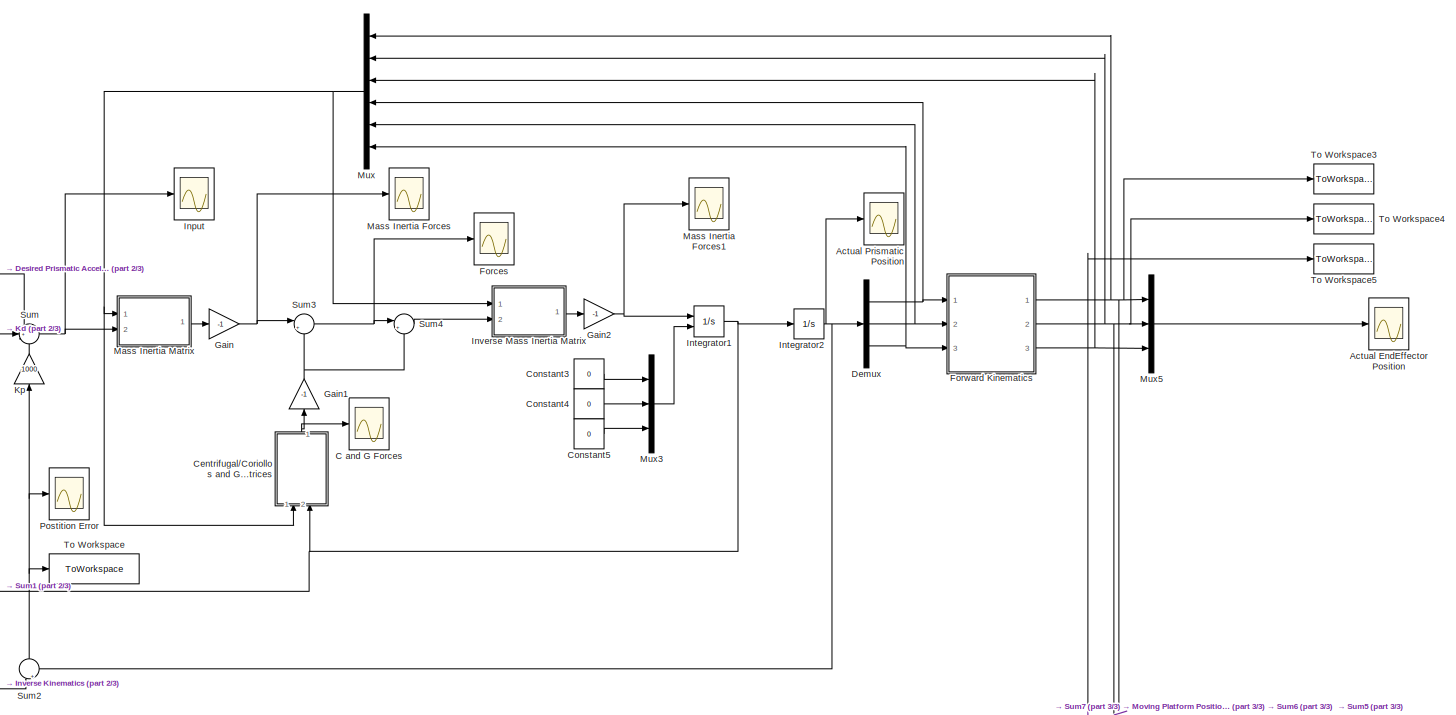
[diagram: root canvas - part 1/3, top center region]
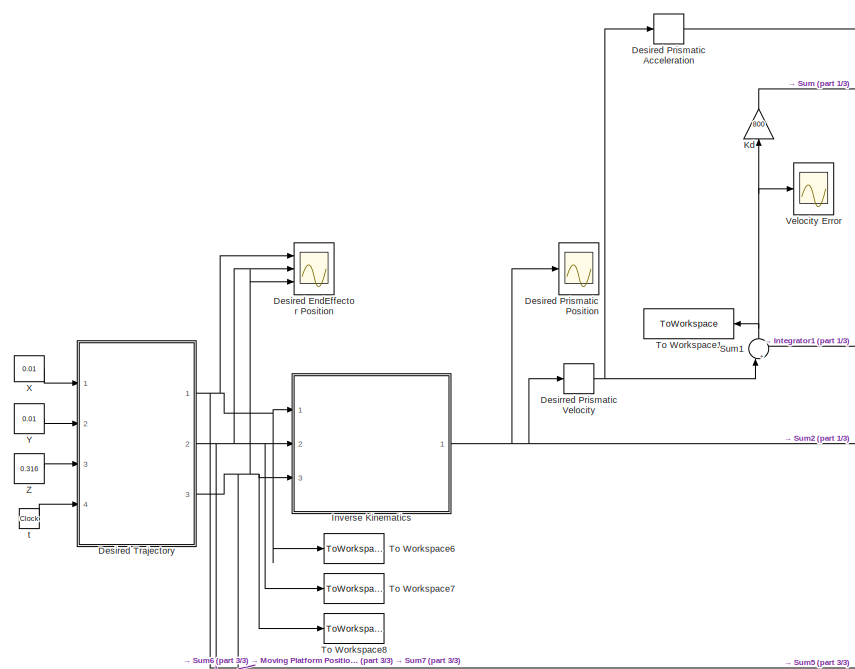
[diagram: root canvas - part 2/3, middle left region]
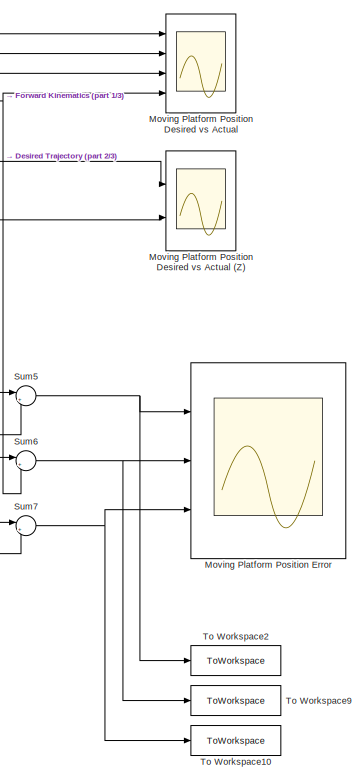
[diagram: root canvas - part 3/3, bottom right region]
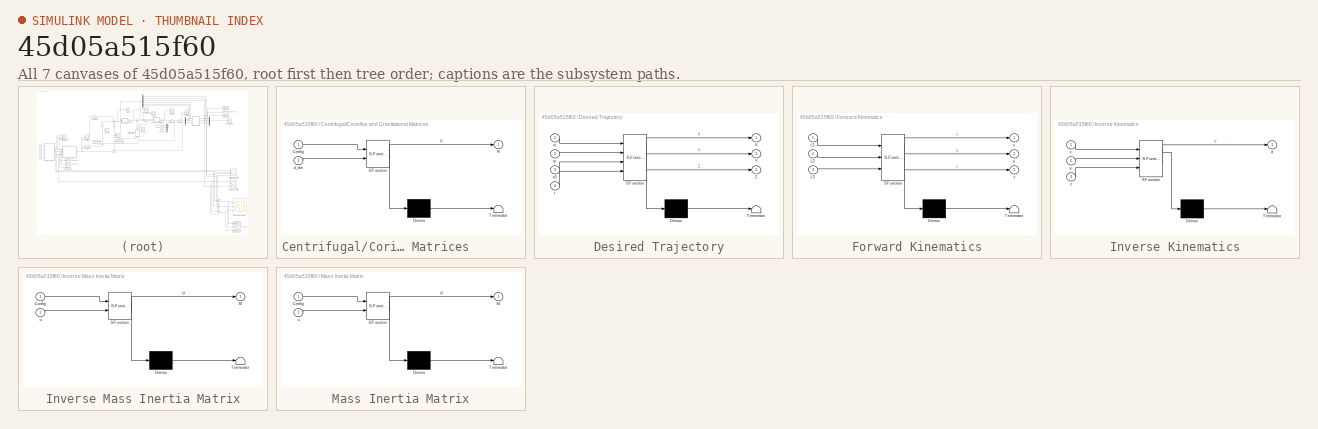
[diagram: thumbnail index - all 7 canvases of the model, root first then tree order]
MODEL slx_45d05a515f60
KIND model
CONFIG AbsTol = auto
CONFIG EnableMultiTasking = off
CONFIG FixedStep = 0.001
CONFIG MaxStep = auto
CONFIG MinStep = auto
CONFIG RelTol = 1e-3
CONFIG SampleTimeConstraint = Unconstrained
CONFIG SolverName = FixedStepAuto
CONFIG StartTime = 0.0
CONFIG StopTime = 30
BLOCK [Scope] Actual EndEffector Position
  Floating = off
  NumInputPorts = 1
  Ports = [1]
  ScopeSpecificationString = Simulink.scopes.TimeScopeBlockCfg('CurrentConfiguration', extmgr.ConfigurationSet(extmgr.Configuration('Core','General UI',true,'FigureColor',[1 1 1]),extmgr.Configuration('Core','Source UI',true),extmgr.Configuration('Sources','WiredSimulink',true,'DataLoggingVariableName','ScopeData1'),extmgr.Configuration('Visuals','Time Domain',true,'SerializedDisplays',{struct('MinYLimReal','-0.7','MaxYLimRea...<+1747ch>
BLOCK [Scope] Actual Prismatic Position
  Floating = off
  NumInputPorts = 1
  Ports = [1]
  ScopeSpecificationString = Simulink.scopes.TimeScopeBlockCfg('CurrentConfiguration', extmgr.ConfigurationSet(extmgr.Configuration('Core','General UI',true,'FigureColor',[1 1 1]),extmgr.Configuration('Core','Source UI',true),extmgr.Configuration('Sources','WiredSimulink',true,'DataLoggingVariableName','ScopeData1'),extmgr.Configuration('Visuals','Time Domain',true,'SerializedDisplays',{struct('MinYLimReal','-0.2','MaxYLimRea...<+1726ch>
BLOCK [Scope] C and G Forces
  Floating = off
  NumInputPorts = 1
  Ports = [1]
  ScopeSpecificationString = Simulink.scopes.TimeScopeBlockCfg('CurrentConfiguration', extmgr.ConfigurationSet(extmgr.Configuration('Core','General UI',true,'FigureColor',[1 1 1]),extmgr.Configuration('Core','Source UI',true),extmgr.Configuration('Sources','WiredSimulink',true,'DataLoggingVariableName','ScopeData2'),extmgr.Configuration('Visuals','Time Domain',true,'SerializedDisplays',{struct('MinYLimReal','-20','MaxYLimReal...<+1860ch>
BLOCK [SubSystem] Centrifugal//Coriollos and Gravitational Matrices       
  ErrorFcn = Stateflow.Translate.translate
  NameLocation = left
  PermitHierarchicalResolution = ExplicitOnly
  Ports = [2, 1]
  RequestExecContextInheritance = off
  SFBlockType = MATLAB Function
  TreatAsAtomicUnit = on
BLOCK [Demux] Centrifugal//Coriollos and Gravitational Matrices       / Demux 
  Outputs = 1
  Ports = [1, 1]
BLOCK [S-Function] Centrifugal//Coriollos and Gravitational Matrices       / SFunction 
  EnableBusSupport = on
  FunctionName = sf_sfun
  PortCounts = [2 2]
  Ports = [2, 2]
  SFcnIsStateOwnerBlock = off
  SFunctionDeploymentMode = off
  Tag = Stateflow S-Function 4
BLOCK [Terminator] Centrifugal//Coriollos and Gravitational Matrices       / Terminator 
BLOCK [Inport] Centrifugal//Coriollos and Gravitational Matrices       /Config
BLOCK [Outport] Centrifugal//Coriollos and Gravitational Matrices       /R
  VectorParamsAs1DForOutWhenUnconnected = off
BLOCK [Inport] Centrifugal//Coriollos and Gravitational Matrices       /d_dot
  Port = 2
BLOCK [Constant] Constant3
  Value = 0
BLOCK [Constant] Constant4
  Value = 0
BLOCK [Constant] Constant5
  Value = 0
BLOCK [Demux] Demux
  Outputs = 3
  Ports = [1, 3]
BLOCK [Scope] Desired EndEffector Position
  Floating = off
  NumInputPorts = 3
  Ports = [3]
  ScopeSpecificationString = Simulink.scopes.TimeScopeBlockCfg('CurrentConfiguration', extmgr.ConfigurationSet(extmgr.Configuration('Core','General UI',true,'FigureColor',[1 1 1]),extmgr.Configuration('Core','Source UI',true),extmgr.Configuration('Sources','WiredSimulink',true,'DataLoggingVariableName','ScopeData3'),extmgr.Configuration('Visuals','Time Domain',true,'SerializedDisplays',{struct('MinYLimReal','-0.5','MaxYLimRea...<+1747ch>
BLOCK [Derivative] Desired Prismatic Acceleration 
BLOCK [Scope] Desired Prismatic Position
  Floating = off
  NumInputPorts = 1
  Ports = [1]
  ScopeSpecificationString = Simulink.scopes.TimeScopeBlockCfg('CurrentConfiguration', extmgr.ConfigurationSet(extmgr.Configuration('Core','General UI',true,'FigureColor',[1 1 1]),extmgr.Configuration('Core','Source UI',true),extmgr.Configuration('Sources','WiredSimulink',true,'DataLoggingVariableName','ScopeData4'),extmgr.Configuration('Visuals','Time Domain',true,'SerializedDisplays',{struct('MinYLimReal','-1','MaxYLimReal'...<+1754ch>
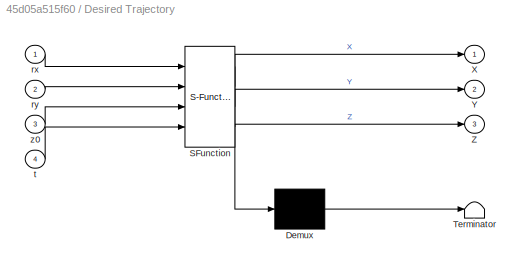
BLOCK [SubSystem] Desired Trajectory
  ErrorFcn = Stateflow.Translate.translate
  PermitHierarchicalResolution = ExplicitOnly
  Ports = [4, 3]
  RequestExecContextInheritance = off
  SFBlockType = MATLAB Function
  TreatAsAtomicUnit = on
BLOCK [Demux] Desired Trajectory/ Demux 
  Outputs = 1
  Ports = [1, 1]
BLOCK [S-Function] Desired Trajectory/ SFunction 
  EnableBusSupport = on
  FunctionName = sf_sfun
  PortCounts = [4 4]
  Ports = [4, 4]
  SFcnIsStateOwnerBlock = off
  SFunctionDeploymentMode = off
  Tag = Stateflow S-Function 3
BLOCK [Terminator] Desired Trajectory/ Terminator 
BLOCK [Outport] Desired Trajectory/X
  VectorParamsAs1DForOutWhenUnconnected = off
BLOCK [Outport] Desired Trajectory/Y
  Port = 2
  VectorParamsAs1DForOutWhenUnconnected = off
BLOCK [Outport] Desired Trajectory/Z
  Port = 3
  VectorParamsAs1DForOutWhenUnconnected = off
BLOCK [Inport] Desired Trajectory/rx
BLOCK [Inport] Desired Trajectory/ry
  Port = 2
BLOCK [Inport] Desired Trajectory/t
  Port = 4
BLOCK [Inport] Desired Trajectory/z0
  Port = 3
BLOCK [Derivative] Desirred Prismatic Velocity
BLOCK [Scope] Forces
  Floating = off
  NumInputPorts = 1
  Ports = [1]
  ScopeSpecificationString = Simulink.scopes.TimeScopeBlockCfg('CurrentConfiguration', extmgr.ConfigurationSet(extmgr.Configuration('Core','General UI',true,'FigureColor',[1 1 1]),extmgr.Configuration('Core','Source UI',true),extmgr.Configuration('Sources','WiredSimulink',true,'DataLoggingVariableName','ScopeData2'),extmgr.Configuration('Visuals','Time Domain',true,'SerializedDisplays',{struct('MinYLimReal','-5','MaxYLimReal'...<+1697ch>
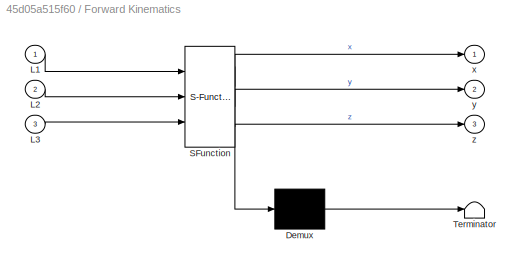
BLOCK [SubSystem] Forward Kinematics
  ErrorFcn = Stateflow.Translate.translate
  PermitHierarchicalResolution = ExplicitOnly
  Ports = [3, 3]
  RequestExecContextInheritance = off
  SFBlockType = MATLAB Function
  TreatAsAtomicUnit = on
BLOCK [Demux] Forward Kinematics/ Demux 
  Outputs = 1
  Ports = [1, 1]
BLOCK [S-Function] Forward Kinematics/ SFunction 
  EnableBusSupport = on
  FunctionName = sf_sfun
  PortCounts = [3 4]
  Ports = [3, 4]
  SFcnIsStateOwnerBlock = off
  SFunctionDeploymentMode = off
  Tag = Stateflow S-Function 6
BLOCK [Terminator] Forward Kinematics/ Terminator 
BLOCK [Inport] Forward Kinematics/L1
BLOCK [Inport] Forward Kinematics/L2
  Port = 2
BLOCK [Inport] Forward Kinematics/L3
  Port = 3
BLOCK [Outport] Forward Kinematics/x
  VectorParamsAs1DForOutWhenUnconnected = off
BLOCK [Outport] Forward Kinematics/y
  Port = 2
  VectorParamsAs1DForOutWhenUnconnected = off
BLOCK [Outport] Forward Kinematics/z
  Port = 3
  VectorParamsAs1DForOutWhenUnconnected = off
BLOCK [Gain] Gain
  Gain = -1
BLOCK [Gain] Gain1
  Gain = -1
  NameLocation = right
BLOCK [Gain] Gain2
  Gain = -1
BLOCK [Scope] Input
  Floating = off
  NumInputPorts = 1
  Ports = [1]
  ScopeSpecificationString = Simulink.scopes.TimeScopeBlockCfg('CurrentConfiguration', extmgr.ConfigurationSet(extmgr.Configuration('Core','General UI',true,'FigureColor',[1 1 1]),extmgr.Configuration('Core','Source UI',true),extmgr.Configuration('Sources','WiredSimulink',true,'DataLoggingVariableName','ScopeData1'),extmgr.Configuration('Visuals','Time Domain',true,'SerializedDisplays',{struct('MinYLimReal','-6','MaxYLimReal'...<+1694ch>
BLOCK [Integrator] Integrator1
  InitialConditionSource = external
  Ports = [2, 1]
BLOCK [Integrator] Integrator2
  InitialCondition = 0.05
  LowerSaturationLimit = 0.05
  Ports = [1, 1]
  UpperSaturationLimit = 0.53
BLOCK [SubSystem] Inverse Kinematics
  ErrorFcn = Stateflow.Translate.translate
  PermitHierarchicalResolution = ExplicitOnly
  Ports = [3, 1]
  RequestExecContextInheritance = off
  SFBlockType = MATLAB Function
  TreatAsAtomicUnit = on
BLOCK [Demux] Inverse Kinematics/ Demux 
  Outputs = 1
  Ports = [1, 1]
BLOCK [S-Function] Inverse Kinematics/ SFunction 
  EnableBusSupport = on
  FunctionName = sf_sfun
  PortCounts = [3 2]
  Ports = [3, 2]
  SFcnIsStateOwnerBlock = off
  SFunctionDeploymentMode = off
  Tag = Stateflow S-Function 2
BLOCK [Terminator] Inverse Kinematics/ Terminator 
BLOCK [Outport] Inverse Kinematics/d
  VectorParamsAs1DForOutWhenUnconnected = off
BLOCK [Inport] Inverse Kinematics/x
BLOCK [Inport] Inverse Kinematics/y
  Port = 2
BLOCK [Inport] Inverse Kinematics/z
  Port = 3
BLOCK [SubSystem] Inverse Mass Inertia Matrix
  ErrorFcn = Stateflow.Translate.translate
  PermitHierarchicalResolution = ExplicitOnly
  Ports = [2, 1]
  RequestExecContextInheritance = off
  SFBlockType = MATLAB Function
  TreatAsAtomicUnit = on
BLOCK [Demux] Inverse Mass Inertia Matrix/ Demux 
  Outputs = 1
  Ports = [1, 1]
BLOCK [S-Function] Inverse Mass Inertia Matrix/ SFunction 
  EnableBusSupport = on
  FunctionName = sf_sfun
  PortCounts = [2 2]
  Ports = [2, 2]
  SFcnIsStateOwnerBlock = off
  SFunctionDeploymentMode = off
  Tag = Stateflow S-Function 5
BLOCK [Terminator] Inverse Mass Inertia Matrix/ Terminator 
BLOCK [Inport] Inverse Mass Inertia Matrix/Config
BLOCK [Outport] Inverse Mass Inertia Matrix/M
  VectorParamsAs1DForOutWhenUnconnected = off
BLOCK [Inport] Inverse Mass Inertia Matrix/u
  Port = 2
BLOCK [Gain] Kd
  Gain = 800
  NameLocation = right
BLOCK [Gain] Kp
  Gain = 1000
  NameLocation = right
BLOCK [Scope] Mass Inertia Forces
  Floating = off
  NumInputPorts = 1
  Ports = [1]
  ScopeSpecificationString = Simulink.scopes.TimeScopeBlockCfg('CurrentConfiguration', extmgr.ConfigurationSet(extmgr.Configuration('Core','General UI',true,'FigureColor',[1 1 1]),extmgr.Configuration('Core','Source UI',true),extmgr.Configuration('Sources','WiredSimulink',true,'DataLoggingVariableName','ScopeData1'),extmgr.Configuration('Visuals','Time Domain',true,'SerializedDisplays',{struct('MinYLimReal','-6','MaxYLimReal'...<+1742ch>
BLOCK [Scope] Mass Inertia Forces1
  Floating = off
  NumInputPorts = 1
  Ports = [1]
  ScopeSpecificationString = Simulink.scopes.TimeScopeBlockCfg('CurrentConfiguration', extmgr.ConfigurationSet(extmgr.Configuration('Core','General UI',true,'FigureColor',[1 1 1]),extmgr.Configuration('Core','Source UI',true),extmgr.Configuration('Sources','WiredSimulink',true,'DataLoggingVariableName','ScopeData1'),extmgr.Configuration('Visuals','Time Domain',true,'SerializedDisplays',{struct('MinYLimReal','-6','MaxYLimReal'...<+1766ch>
BLOCK [SubSystem] Mass Inertia Matrix
  ErrorFcn = Stateflow.Translate.translate
  PermitHierarchicalResolution = ExplicitOnly
  Ports = [2, 1]
  RequestExecContextInheritance = off
  SFBlockType = MATLAB Function
  TreatAsAtomicUnit = on
BLOCK [Demux] Mass Inertia Matrix/ Demux 
  Outputs = 1
  Ports = [1, 1]
BLOCK [S-Function] Mass Inertia Matrix/ SFunction 
  EnableBusSupport = on
  FunctionName = sf_sfun
  PortCounts = [2 2]
  Ports = [2, 2]
  SFcnIsStateOwnerBlock = off
  SFunctionDeploymentMode = off
  Tag = Stateflow S-Function 1
BLOCK [Terminator] Mass Inertia Matrix/ Terminator 
BLOCK [Inport] Mass Inertia Matrix/Config
BLOCK [Outport] Mass Inertia Matrix/M
  VectorParamsAs1DForOutWhenUnconnected = off
BLOCK [Inport] Mass Inertia Matrix/u
  Port = 2
BLOCK [Scope] Moving Platform Position Desired vs Actual
  Floating = off
  NumInputPorts = 4
  Ports = [4]
  ScopeSpecificationString = Simulink.scopes.TimeScopeBlockCfg('CurrentConfiguration', extmgr.ConfigurationSet(extmgr.Configuration('Core','General UI',true,'FigureColor',[1 1 1]),extmgr.Configuration('Core','Source UI',true),extmgr.Configuration('Sources','WiredSimulink',true,'DataLoggingVariableName','ScopeData6'),extmgr.Configuration('Visuals','Time Domain',true,'SerializedDisplays',{struct('MinYLimReal','-0.015','MaxYLimR...<+1801ch>
BLOCK [Scope] Moving Platform Position Desired vs Actual (Z)
  Floating = off
  NumInputPorts = 2
  Ports = [2]
  ScopeSpecificationString = Simulink.scopes.TimeScopeBlockCfg('CurrentConfiguration', extmgr.ConfigurationSet(extmgr.Configuration('Core','General UI',true,'FigureColor',[1 1 1]),extmgr.Configuration('Core','Source UI',true),extmgr.Configuration('Sources','WiredSimulink',true,'DataLoggingVariableName','ScopeData1'),extmgr.Configuration('Visuals','Time Domain',true,'SerializedDisplays',{struct('MinYLimReal','-0.4','MaxYLimRea...<+1749ch>
BLOCK [Scope] Moving Platform Position Error
  Floating = off
  NumInputPorts = 3
  Ports = [3]
  ScopeSpecificationString = Simulink.scopes.TimeScopeBlockCfg('CurrentConfiguration', extmgr.ConfigurationSet(extmgr.Configuration('Core','General UI',true,'FigureColor',[1 1 1]),extmgr.Configuration('Core','Source UI',true),extmgr.Configuration('Sources','WiredSimulink',true,'DataLoggingVariableName','ScopeData1'),extmgr.Configuration('Visuals','Time Domain',true,'SerializedDisplays',{struct('MinYLimReal','-0.02','MaxYLimRe...<+1726ch>
BLOCK [Mux] Mux
  DisplayOption = bar
  Inputs = 6
  Ports = [6, 1]
BLOCK [Mux] Mux3
  DisplayOption = bar
  Inputs = 3
  Ports = [3, 1]
BLOCK [Mux] Mux5
  DisplayOption = bar
  Inputs = 3
  Ports = [3, 1]
BLOCK [Scope] Postition Error
  Floating = off
  NumInputPorts = 1
  Ports = [1]
  ScopeSpecificationString = Simulink.scopes.TimeScopeBlockCfg('CurrentConfiguration', extmgr.ConfigurationSet(extmgr.Configuration('Core','General UI',true,'FigureColor',[1 1 1]),extmgr.Configuration('Core','Source UI',true),extmgr.Configuration('Sources','WiredSimulink',true,'DataLoggingVariableName','ScopeData7'),extmgr.Configuration('Visuals','Time Domain',true,'SerializedDisplays',{struct('MinYLimReal','-0.1','MaxYLimRea...<+1708ch>
BLOCK [Sum] Sum
  Inputs = 3
  Ports = [3, 1]
BLOCK [Sum] Sum1
  Inputs = |+-
  NameLocation = right
  Ports = [2, 1]
BLOCK [Sum] Sum2
  Inputs = |+-
  NameLocation = right
  Ports = [2, 1]
BLOCK [Sum] Sum3
  Inputs = |++
  Ports = [2, 1]
BLOCK [Sum] Sum4
  Inputs = |+-
  Ports = [2, 1]
BLOCK [Sum] Sum5
  Inputs = |+-
  Ports = [2, 1]
BLOCK [Sum] Sum6
  Inputs = |+-
  Ports = [2, 1]
BLOCK [Sum] Sum7
  Inputs = |+-
  Ports = [2, 1]
BLOCK [ToWorkspace] To Workspace
  FixptAsFi = on
  MaxDataPoints = inf
  Ports = [1]
  SampleTime = -1
  VariableName = Position_Error
BLOCK [ToWorkspace] To Workspace1
  FixptAsFi = on
  MaxDataPoints = inf
  Ports = [1]
  SampleTime = -1
  VariableName = Velocity_Error
BLOCK [ToWorkspace] To Workspace10
  FixptAsFi = on
  MaxDataPoints = inf
  Ports = [1]
  SampleTime = -1
  VariableName = MP_Z
BLOCK [ToWorkspace] To Workspace2
  FixptAsFi = on
  MaxDataPoints = inf
  Ports = [1]
  SampleTime = -1
  VariableName = MP_X
BLOCK [ToWorkspace] To Workspace3
  FixptAsFi = on
  MaxDataPoints = inf
  Ports = [1]
  SampleTime = -1
  VariableName = Act_X
BLOCK [ToWorkspace] To Workspace4
  FixptAsFi = on
  MaxDataPoints = inf
  Ports = [1]
  SampleTime = -1
  VariableName = Act_Y
BLOCK [ToWorkspace] To Workspace5
  FixptAsFi = on
  MaxDataPoints = inf
  Ports = [1]
  SampleTime = -1
  VariableName = Act_Z
BLOCK [ToWorkspace] To Workspace6
  FixptAsFi = on
  MaxDataPoints = inf
  Ports = [1]
  SampleTime = -1
  VariableName = Des_X
BLOCK [ToWorkspace] To Workspace7
  FixptAsFi = on
  MaxDataPoints = inf
  Ports = [1]
  SampleTime = -1
  VariableName = Des_Y
BLOCK [ToWorkspace] To Workspace8
  FixptAsFi = on
  MaxDataPoints = inf
  Ports = [1]
  SampleTime = -1
  VariableName = Des_Z
BLOCK [ToWorkspace] To Workspace9
  FixptAsFi = on
  MaxDataPoints = inf
  Ports = [1]
  SampleTime = -1
  VariableName = MP_Y
BLOCK [Scope] Velocity Error
  Floating = off
  NumInputPorts = 1
  Ports = [1]
  ScopeSpecificationString = Simulink.scopes.TimeScopeBlockCfg('CurrentConfiguration', extmgr.ConfigurationSet(extmgr.Configuration('Core','General UI',true,'FigureColor',[1 1 1]),extmgr.Configuration('Core','Source UI',true),extmgr.Configuration('Sources','WiredSimulink',true),extmgr.Configuration('Visuals','Time Domain',true,'SerializedDisplays',{struct('MinYLimReal','-0.2','MaxYLimReal','0.6','YLabelReal','','MinYLimMag','...<+1666ch>
BLOCK [Constant] X
  Value = 0.01
BLOCK [Constant] Y
  Value = 0.01
BLOCK [Constant] Z
  Value = 0.316
BLOCK [Clock] t
NET Centrifugal//Coriollos and Gravitational Matrices       :1 -> C and G Forces:1, Gain1:1
LINE Constant3:1 -> Mux3:1
LINE Constant4:1 -> Mux3:2
LINE Constant5:1 -> Mux3:3
NET Demux:1 -> Forward Kinematics:1, Mux:4
NET Demux:2 -> Forward Kinematics:2, Mux:5
NET Demux:3 -> Forward Kinematics:3, Mux:6
LINE Desired Prismatic Acceleration :1 -> Sum:1
NET Desired Trajectory:1 -> Desired EndEffector Position:1, Inverse Kinematics:1, Moving Platform Position Desired vs Actual:1, Sum5:1, To Workspace6:1
NET Desired Trajectory:2 -> Desired EndEffector Position:2, Inverse Kinematics:2, Moving Platform Position Desired vs Actual:2, Sum6:1, To Workspace7:1
NET Desired Trajectory:3 -> Desired EndEffector Position:3, Inverse Kinematics:3, Moving Platform Position Desired vs Actual (Z):1, Sum7:1, To Workspace8:1
NET Desirred Prismatic Velocity:1 -> Desired Prismatic Acceleration :1, Sum1:1
NET Forward Kinematics:1 -> Moving Platform Position Desired vs Actual:3, Mux5:1, Mux:1, Sum5:2, To Workspace3:1
NET Forward Kinematics:2 -> Moving Platform Position Desired vs Actual:4, Mux5:2, Mux:2, Sum6:2, To Workspace4:1
NET Forward Kinematics:3 -> Moving Platform Position Desired vs Actual (Z):2, Mux5:3, Mux:3, Sum7:2, To Workspace5:1
NET Gain1:1 -> Sum3:2, Sum4:2
NET Gain2:1 -> Integrator1:1, Mass Inertia Forces1:1
NET Gain:1 -> Mass Inertia Forces:1, Sum3:1
NET Integrator1:1 -> Centrifugal//Coriollos and Gravitational Matrices       :2, Integrator2:1, Sum1:2
NET Integrator2:1 -> Actual Prismatic Position:1, Demux:1, Sum2:2
NET Inverse Kinematics:1 -> Desired Prismatic Position:1, Desirred Prismatic Velocity:1, Sum2:1
LINE Inverse Mass Inertia Matrix:1 -> Gain2:1
LINE Kd:1 -> Sum:2
LINE Kp:1 -> Sum:3
LINE Mass Inertia Matrix:1 -> Gain:1
LINE Mux3:1 -> Integrator1:2
LINE Mux5:1 -> Actual EndEffector Position:1
NET Mux:1 -> Centrifugal//Coriollos and Gravitational Matrices       :1, Inverse Mass Inertia Matrix:1, Mass Inertia Matrix:1
NET Sum1:1 -> Kd:1, To Workspace1:1, Velocity Error:1
NET Sum2:1 -> Kp:1, Postition Error:1, To Workspace:1
NET Sum3:1 -> Forces:1, Sum4:1
LINE Sum4:1 -> Inverse Mass Inertia Matrix:2
NET Sum5:1 -> Moving Platform Position Error:1, To Workspace2:1
NET Sum6:1 -> Moving Platform Position Error:2, To Workspace9:1
NET Sum7:1 -> Moving Platform Position Error:3, To Workspace10:1
NET Sum:1 -> Input:1, Mass Inertia Matrix:2
LINE X:1 -> Desired Trajectory:1
LINE Y:1 -> Desired Trajectory:2
LINE Z:1 -> Desired Trajectory:3
LINE t:1 -> Desired Trajectory:4
note: NET lines group one-source signal fan-out (src -> all destinations, sorted); 1:1 wires keep LINE
CHART Mass Inertia Matrix states=1 transitions=1
  STATE_LABEL 'eML_blk_kernel()'
  STATE_LABEL 'SCRIPT:\nfunction M = fcn(Config, u)\n\n%% Dimensions\n\n% Dimensions of the fixed platform in m\nSB = 0.485;\nWB = 0.140;\nUB = 0.280;\n\n% Dimensions of the moving platform in m\n\nsp = 0.09268;\nwp = 0.02675;\nup = 0.05351;\n\n% Masses of the moving platform, slider and a link in kilograms, respectively \n\nmp = 9.8783135266E-02;\nms = 1.1195922174;\nml = 0.1044713488;\n\n% Mass Proportion ratio\n\nw = 0.5;\n\n% Leg len...<+2146ch>'
CHART Inverse Kinematics states=1 transitions=1
  STATE_LABEL 'eML_blk_kernel()'
  STATE_LABEL 'SCRIPT:\nfunction d = fcn(x,y,z)\nSB = 0.485; % meters\nWB = 0.140; % meters\nUB = 0.280; % meters\n\nsp = 0.09268;\nwp = 0.02675;\nup = 0.05351;\n\nl = 0.365; % meters\n\na = SB/2 - sp/2;\nb = WB - wp;\nc = up - UB;\n\nC1 = x^2 + y^2 + z^2 + a^2 + b^2 + 2*a*x + 2*b*y - l^2;\nC2 = x^2 + y^2 + z^2 + a^2 + b^2 - 2*a*x + 2*b*y - l^2 ;\nC3 = x^2 + y^2 + z^2 + c^2 + 2*c*y - l^2;\n\nL1 = -z - (z^2 - C1)^0.5 - 0.054; % addi...<+226ch>'
CHART Desired Trajectory states=1 transitions=1
  STATE_LABEL 'eML_blk_kernel()'
  STATE_LABEL 'SCRIPT:\nfunction [X,Y,Z] = fcn(rx, ry, z0, t)\n\nw = 1;\nv = 1;\n\n\nX =  rx*sin((pi/6)*t);\nY =  ry*cos((pi/6)*t);\nZ = -(z0 + ((pi/6)*t)/100);\n\nend\n'
CHART Centrifugal//Coriollos
 and Gravitational 
Matrices        states=1 transitions=1
  STATE_LABEL 'eML_blk_kernel()'
  STATE_LABEL 'SCRIPT:\nfunction R = fcn(Config, d_dot)\n\n%% Dimensions\n\n% Dimensions of the fixed platform in m\nSB = 0.485;\nWB = 0.140;\nUB = 0.280;\n\n% Dimensions of the moving platform in m\n\nsp = 0.09268;\nwp = 0.02675;\nup = 0.05351;\n\n% Masses of the moving platform, slider and a link in kilograms, respectively \n\n mp = 9.8783135266E-02;\n ms = 1.1195922174;\n ml = 0.1044713488;\n\n% Mass Proportion ratio\n\nw = 0.1;\n\n% ...<+2836ch>'
CHART Inverse Mass Inertia Matrix states=1 transitions=1
  STATE_LABEL 'eML_blk_kernel()'
  STATE_LABEL 'SCRIPT:\nfunction M = fcn(Config, u)\n\n%% Dimensions\n\n% Dimensions of the fixed platform in m\nSB = 0.485;\nWB = 0.140;\nUB = 0.280;\n\n% Dimensions of the moving platform in m\n\nsp = 0.09268;\nwp = 0.02675;\nup = 0.05351;\n\n% Masses of the moving platform, slider and a link in kilograms, respectively \n\nmp = 9.8783135266E-02;\nms = 1.1195922174;\nml = 0.1044713488;\n\n% Mass Proportion ratio\n\nw = 0.5;\n\n% Leg len...<+2146ch>'
CHART Forward Kinematics states=1 transitions=1
  STATE_LABEL 'eML_blk_kernel()'
  STATE_LABEL 'SCRIPT:\nfunction [x,y,z] = fcn(L1, L2, L3)\nSB = 0.485; % meters\nWB = 0.140; % meters\nUB = 0.280; % meters\n\nsp = 0.09268; % meters\nwp = 0.02675; % meters\nup = 0.05351; % meters\n\nl = 0.365; % meters\n\nL1 = L1 + 0.054;\nL2 = L2 + 0.054;\nL3 = L3 + 0.054;\n\na = SB/2 - sp/2;\nb = WB - wp;\nc = up - UB;\n\nd = (L2-L1)/(2*a);\ne = (L2^2 - L1^2)/(4*a);\n\nD = (L3 - L1 - a*d)/(b-c);\nE = (c^2 - a^2 - b^2 - 2*a*e + L3^...<+183ch>'
CHART  states=0 transitions=0
CHART  states=0 transitions=0
CHART  states=0 transitions=0
CHART  states=0 transitions=0
CHART  states=0 transitions=0
CHART  states=0 transitions=0
